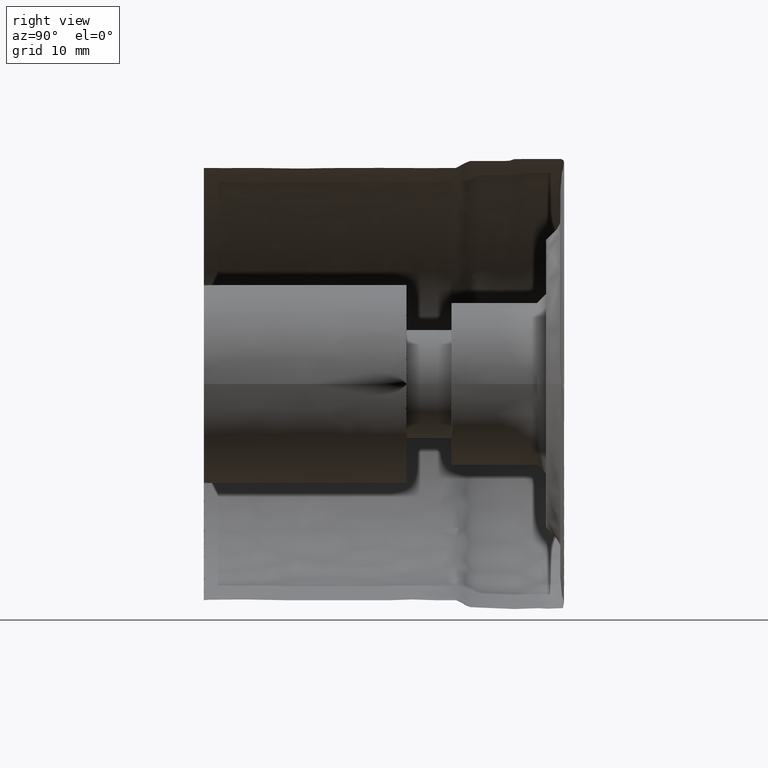
[diagram: clean part render]
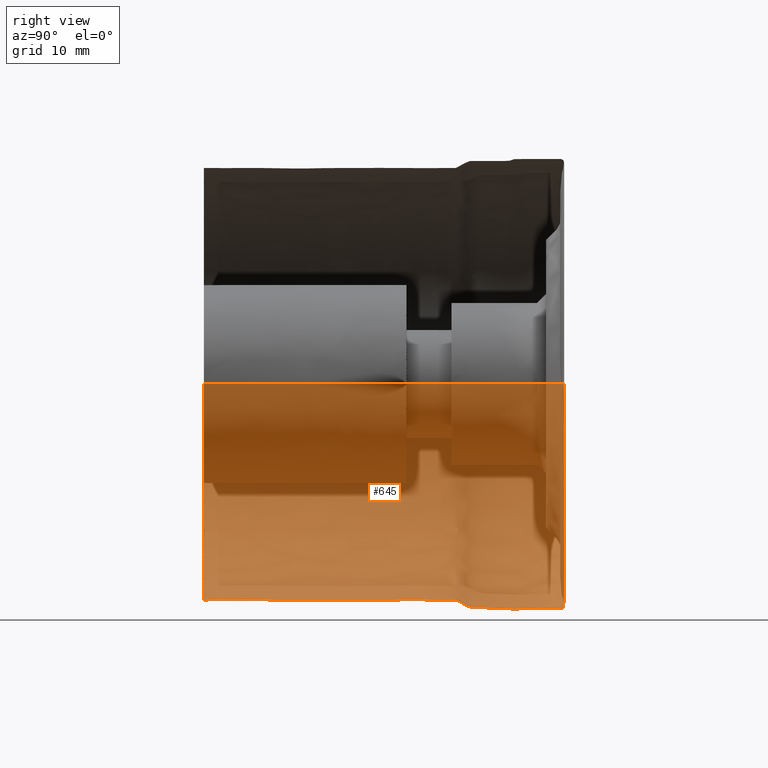
[diagram: same view with one face highlighted and labeled with its STEP entity id]
A machine part, right view. The second image highlights one B-rep face of the part: STEP entity #645.
In plain terms, the highlighted face is a freeform B-spline surface patch.
Its self-contained STEP definition (entity closure, byte-faithful):
#2 = CARTESIAN_POINT ( 'NONE',  ( 24.13964317964475000, 39.99261137805715500, 2.956156041679799800E-015 ) ) ;
#4 = CARTESIAN_POINT ( 'NONE',  ( 21.42947871147335100, 39.57339999999999900, 2.624267578917160200E-015 ) ) ;
#8 = CARTESIAN_POINT ( 'NONE',  ( 4.311545017381719900E-015, 39.74729020106985200, -23.47173306711470200 ) ) ;
#19 = CARTESIAN_POINT ( 'NONE',  ( -24.77530000000000100, 29.58117358629594700, -4.256733303206069800E-015 ) ) ;
#22 = CARTESIAN_POINT ( 'NONE',  ( 24.77529999999995200, 29.58117358629593200, -24.77529999999995200 ) ) ;
#24 = CARTESIAN_POINT ( 'NONE',  ( -22.60941189616135100, 39.73827917245049700, -5.537525892845280700E-015 ) ) ;
#25 = CARTESIAN_POINT ( 'NONE',  ( 4.399994483277904700E-015, 39.92430582025439600, -23.95324543566814800 ) ) ;
#28 = CARTESIAN_POINT ( 'NONE',  ( 24.99682652491677400, 39.76895328073157300, -24.99682652491677400 ) ) ;
#29 = CARTESIAN_POINT ( 'NONE',  ( 11.00000000000000000, 0.0000000000000000000, 1.347066989204614000E-015 ) ) ;
#32 = CARTESIAN_POINT ( 'NONE',  ( 24.77529999999995200, 29.09084159066969000, -24.77529999999995200 ) ) ;
#35 = CARTESIAN_POINT ( 'NONE',  ( 23.99999999999999600, 28.00000000000000700, -23.99999999999999600 ) ) ;
#39 = CARTESIAN_POINT ( 'NONE',  ( 24.77530000000000100, 29.09084159066968700, 1.252757507286833100E-015 ) ) ;
#41 = CARTESIAN_POINT ( 'NONE',  ( 24.99639354798992100, 39.60653528401000000, -24.99639354798992100 ) ) ;
#42 = CARTESIAN_POINT ( 'NONE',  ( 17.50000000000000000, 0.0000000000000000000, 2.143061119189159800E-015 ) ) ;
#43 = EDGE_LOOP ( 'NONE', ( #561, #507, #269, #486 ) ) ;
#56 = CARTESIAN_POINT ( 'NONE',  ( 24.60404800753579800, 39.99659884574440100, 3.013027351977914900E-015 ) ) ;
#57 = CARTESIAN_POINT ( 'NONE',  ( 24.99639354798994600, 39.60653528401005000, 3.061074236151315200E-015 ) ) ;
#65 = CARTESIAN_POINT ( 'NONE',  ( 4.434234062519700200E-015, 39.99261137805715500, -24.13964317964475000 ) ) ;
#66 = CARTESIAN_POINT ( 'NONE',  ( -21.55088943592901200, 39.72753399771878700, -5.278271226752446100E-015 ) ) ;
#70 = CARTESIAN_POINT ( 'NONE',  ( -23.47173306711470200, 39.74729020106985200, -5.748726689842289800E-015 ) ) ;
#82 = CARTESIAN_POINT ( 'NONE',  ( -24.60404800753579800, 39.99659884574440100, -6.026054703955829900E-015 ) ) ;
#85 = CARTESIAN_POINT ( 'NONE',  ( -24.76646075411625200, 39.99797464198817900, -6.065833040236651600E-015 ) ) ;
#89 = CARTESIAN_POINT ( 'NONE',  ( -24.00000000000000000, 0.0000000000000000000, -5.878110498347410100E-015 ) ) ;
#90 = CARTESIAN_POINT ( 'NONE',  ( 24.96573568026043700, 34.26659041497172400, -24.96573568026035500 ) ) ;
#94 = CARTESIAN_POINT ( 'NONE',  ( -24.38765000000000100, 28.79058679314794800, -4.210197453101073900E-015 ) ) ;
#98 = CARTESIAN_POINT ( 'NONE',  ( -24.00000000000000000, 14.00000000000000000, -5.020886050671749900E-015 ) ) ;
#101 = CARTESIAN_POINT ( 'NONE',  ( 4.590381217429320100E-015, 37.04831764200499600, -24.98969677399495000 ) ) ;
#102 = CARTESIAN_POINT ( 'NONE',  ( 21.42947871147335100, 39.57339999999999900, 2.624267578917160200E-015 ) ) ;
#104 = CARTESIAN_POINT ( 'NONE',  ( -24.99639354798992100, 39.60653528401000000, -24.99639354798992100 ) ) ;
#107 =( BOUNDED_SURFACE ( )  B_SPLINE_SURFACE ( 2, 2, ( 
 ( #459, #346, #400, #226, #287 ),
 ( #691, #634, #215, #517, #114 ),
 ( #461, #758, #344, #229, #636 ),
 ( #220, #623, #160, #560, #98 ),
 ( #500, #35, #444, #745, #384 ),
 ( #679, #332, #498, #275, #217 ),
 ( #620, #157, #557, #441, #94 ),
 ( #381, #32, #328, #741, #272 ),
 ( #676, #22, #317, #665, #371 ),
 ( #731, #737, #438, #490, #433 ),
 ( #377, #151, #264, #211, #551 ),
 ( #436, #90, #449, #336, #162 ),
 ( #224, #630, #283, #686, #341 ),
 ( #756, #503, #101, #393, #752 ),
 ( #452, #41, #508, #104, #567 ),
 ( #167, #28, #281, #627, #684 ),
 ( #493, #279, #176, #681, #222 ),
 ( #321, #607, #549, #405, #464 ),
 ( #56, #762, #638, #734, #116 ),
 ( #521, #178, #234, #579, #334 ),
 ( #2, #412, #65, #472, #697 ),
 ( #592, #760, #403, #348, #693 ),
 ( #290, #232, #25, #212, #302 ),
 ( #649, #245, #709, #190, #126 ),
 ( #356, #358, #8, #416, #70 ),
 ( #475, #130, #739, #695, #671 ),
 ( #725, #688, #454, #666, #662 ),
 ( #326, #754, #720, #707, #66 ),
 ( #4, #187, #242, #413, #588 ) ),
 .UNSPECIFIED., .F., .F., .T. ) 
 B_SPLINE_SURFACE_WITH_KNOTS ( ( 3, 2, 2, 2, 2, 2, 2, 2, 2, 2, 2, 2, 2, 2, 3 ),
 ( 3, 2, 3 ),
 ( 0.0000000000000000000, 13.00000000000000000, 41.00000000000000000, 41.88051121514720200, 42.76102243029440300, 47.32816481955410400, 47.72810932741119700, 52.84456214187059700, 53.14432677780929700, 53.44409141374799800, 53.90851335681800500, 54.10703332021369500, 54.62005808878330300, 56.34479459099009800, 56.69872792115900500 ),
 ( 3.141592653589795300, 4.712388980384689700, 6.283185307179590700 ),
 .UNSPECIFIED. ) 
 GEOMETRIC_REPRESENTATION_ITEM ( )  RATIONAL_B_SPLINE_SURFACE ( (
 ( 1.000000000000000000, 0.7071067811865480200, 1.000000000000000000, 0.7071067811865480200, 1.000000000000000000),
 ( 1.000000000000000000, 0.7071067811865480200, 1.000000000000000000, 0.7071067811865480200, 1.000000000000000000),
 ( 1.000000000000000000, 0.7071067811865480200, 1.000000000000000000, 0.7071067811865480200, 1.000000000000000000),
 ( 1.000000000000000000, 0.7071067811865480200, 1.000000000000000000, 0.7071067811865480200, 1.000000000000000000),
 ( 1.000000000000000000, 0.7071067811865480200, 1.000000000000000000, 0.7071067811865480200, 1.000000000000000000),
 ( 0.8978724853786330700, 0.6348917230520509900, 0.8978724853786330700, 0.6348917230520509900, 0.8978724853786330700),
 ( 1.000000000000000000, 0.7071067811865480200, 1.000000000000000000, 0.7071067811865480200, 1.000000000000000000),
 ( 0.8978724853786330700, 0.6348917230520509900, 0.8978724853786330700, 0.6348917230520509900, 0.8978724853786330700),
 ( 1.000000000000000000, 0.7071067811865480200, 1.000000000000000000, 0.7071067811865480200, 1.000000000000000000),
 ( 1.000000000000000000, 0.7071067811865480200, 1.000000000000000000, 0.7071067811865480200, 1.000000000000000000),
 ( 1.000000000000000000, 0.7071067811865480200, 1.000000000000000000, 0.7071067811865480200, 1.000000000000000000),
 ( 0.8920349467165550300, 0.6307639598786570800, 0.8920349467165550300, 0.6307639598786570800, 0.8920349467165550300),
 ( 1.000000000000000000, 0.7071067811865480200, 1.000000000000000000, 0.7071067811865480200, 1.000000000000000000),
 ( 1.000000000000000000, 0.7071067811865480200, 1.000000000000000000, 0.7071067811865480200, 1.000000000000000000),
 ( 1.000000000000000000, 0.7071067811865480200, 1.000000000000000000, 0.7071067811865480200, 1.000000000000000000),
 ( 0.9228151349896920300, 0.6525288397327910800, 0.9228151349896920300, 0.6525288397327910800, 0.9228151349896920300),
 ( 1.000000000000000000, 0.7071067811865480200, 1.000000000000000000, 0.7071067811865480200, 1.000000000000000000),
 ( 0.9228151349896920300, 0.6525288397327910800, 0.9228151349896920300, 0.6525288397327910800, 0.9228151349896920300),
 ( 1.000000000000000000, 0.7071067811865480200, 1.000000000000000000, 0.7071067811865480200, 1.000000000000000000),
 ( 1.000000000000000000, 0.7071067811865480200, 1.000000000000000000, 0.7071067811865480200, 1.000000000000000000),
 ( 1.000000000000000000, 0.7071067811865480200, 1.000000000000000000, 0.7071067811865480200, 1.000000000000000000),
 ( 0.9418178813543789400, 0.6659658105484279600, 0.9418178813543789400, 0.6659658105484279600, 0.9418178813543789400),
 ( 1.000000000000000000, 0.7071067811865480200, 1.000000000000000000, 0.7071067811865480200, 1.000000000000000000),
 ( 0.9421499427126159800, 0.6662006133866079600, 0.9421499427126159800, 0.6662006133866079600, 0.9421499427126159800),
 ( 1.000000000000000000, 0.7071067811865480200, 1.000000000000000000, 0.7071067811865480200, 1.000000000000000000),
 ( 1.000000000000000000, 0.7071067811865480200, 1.000000000000000000, 0.7071067811865480200, 1.000000000000000000),
 ( 1.000000000000000000, 0.7071067811865480200, 1.000000000000000000, 0.7071067811865480200, 1.000000000000000000),
 ( 0.9019307842641251000, 0.6377613737140640500, 0.9019307842641251000, 0.6377613737140640500, 0.9019307842641251000),
 ( 1.000000000000000000, 0.7071067811865480200, 1.000000000000000000, 0.7071067811865480200, 1.000000000000000000) ) ) 
 REPRESENTATION_ITEM ( '' )  SURFACE ( )  );
#114 = CARTESIAN_POINT ( 'NONE',  ( -17.50000000000000000, 0.0000000000000000000, -4.286122238378319600E-015 ) ) ;
#115 = CARTESIAN_POINT ( 'NONE',  ( 24.60404800753579800, 39.99659884574440100, 3.013027351977914900E-015 ) ) ;
#116 = CARTESIAN_POINT ( 'NONE',  ( -24.60404800753579800, 39.99659884574440100, -6.026054703955829900E-015 ) ) ;
#126 = CARTESIAN_POINT ( 'NONE',  ( -23.74398100623139000, 39.75013512017143600, -5.815406001053756000E-015 ) ) ;
#130 = CARTESIAN_POINT ( 'NONE',  ( 22.60941189616135100, 39.73827917245047600, -22.60941189616128000 ) ) ;
#142 = CARTESIAN_POINT ( 'NONE',  ( -23.95324543566814800, 39.92430582025439600, -5.866659311037210800E-015 ) ) ;
#146 = CARTESIAN_POINT ( 'NONE',  ( -24.99639354798994600, 39.60653528401005000, -6.122148472302630300E-015 ) ) ;
#149 = CARTESIAN_POINT ( 'NONE',  ( -24.00000000000000000, 14.00000000000000000, -5.020886050671749900E-015 ) ) ;
#151 = CARTESIAN_POINT ( 'NONE',  ( 24.77529999999995200, 34.14831597555567600, -24.77529999999995200 ) ) ;
#157 = CARTESIAN_POINT ( 'NONE',  ( 24.38764999999997600, 28.79058679314797000, -24.38764999999997600 ) ) ;
#160 = CARTESIAN_POINT ( 'NONE',  ( 3.551358426084894400E-015, 14.00000000000000000, -24.00000000000000000 ) ) ;
#162 = CARTESIAN_POINT ( 'NONE',  ( -24.96573568026041600, 34.26659041497175900, -6.114639708379389000E-015 ) ) ;
#163 = CARTESIAN_POINT ( 'NONE',  ( 21.74709072520795100, 39.72926814383114900, 2.663162547924135000E-015 ) ) ;
#167 = CARTESIAN_POINT ( 'NONE',  ( 24.99682652491684100, 39.76895328073156600, 3.061127258780887100E-015 ) ) ;
#168 = CARTESIAN_POINT ( 'NONE',  ( 24.77530000000000100, 31.86474478092580400, 1.082910533703044000E-015 ) ) ;
#176 = CARTESIAN_POINT ( 'NONE',  ( 4.570532834174409800E-015, 39.88346396135984400, -24.88164363951650100 ) ) ;
#177 = CARTESIAN_POINT ( 'NONE',  ( 24.13964317964475000, 39.99261137805715500, 2.956156041679799800E-015 ) ) ;
#178 = CARTESIAN_POINT ( 'NONE',  ( 24.37184582017497500, 39.99457836357623100, -24.37184582017497500 ) ) ;
#180 = VERTEX_POINT ( 'NONE', #765 ) ;
#187 = CARTESIAN_POINT ( 'NONE',  ( 21.42947871147331500, 39.57339999999994300, -21.42947871147331500 ) ) ;
#190 = CARTESIAN_POINT ( 'NONE',  ( -23.74398100623136500, 39.75013512017142900, -23.74398100623144000 ) ) ;
#202 =( BOUNDED_CURVE ( )  B_SPLINE_CURVE ( 2, ( #661, #435, #488, #491, #609 ),
 .UNSPECIFIED., .F., .F. ) 
 B_SPLINE_CURVE_WITH_KNOTS ( ( 3, 2, 3 ),
 ( 3.141592653589795300, 4.712388980384689700, 6.283185307179590700 ),
 .UNSPECIFIED. ) 
 CURVE ( )  GEOMETRIC_REPRESENTATION_ITEM ( )  RATIONAL_B_SPLINE_CURVE ( ( 1.000000000000000000, 0.7071067811865480200, 1.000000000000000000, 0.7071067811865480200, 1.000000000000000000 ) ) 
 REPRESENTATION_ITEM ( '' )  );
#204 = CARTESIAN_POINT ( 'NONE',  ( -21.42947871147335100, 39.57339999999999900, -5.248535157834320400E-015 ) ) ;
#208 = CARTESIAN_POINT ( 'NONE',  ( 21.42947871147335100, 39.57339999999999900, 2.624267578917160200E-015 ) ) ;
#210 = CARTESIAN_POINT ( 'NONE',  ( -23.74398100623139400, 39.75013512017142100, -5.815406001053756700E-015 ) ) ;
#211 = CARTESIAN_POINT ( 'NONE',  ( -24.77529999999995200, 34.14831597555567600, -24.77529999999995200 ) ) ;
#212 = CARTESIAN_POINT ( 'NONE',  ( -23.95324543566811200, 39.92430582025439600, -23.95324543566811200 ) ) ;
#213 = CARTESIAN_POINT ( 'NONE',  ( 24.77530000000000100, 29.58117358629594700, 1.222734323420520100E-015 ) ) ;
#215 = CARTESIAN_POINT ( 'NONE',  ( 3.214591678783739900E-015, 0.0000000000000000000, -17.50000000000000000 ) ) ;
#217 = CARTESIAN_POINT ( 'NONE',  ( -24.00000000000000700, 28.49033199562621700, -4.133638419129769000E-015 ) ) ;
#220 = CARTESIAN_POINT ( 'NONE',  ( 24.00000000000000000, 14.00000000000000000, 2.081830801498040200E-015 ) ) ;
#222 = CARTESIAN_POINT ( 'NONE',  ( -24.88164363951650100, 39.88346396135984400, -6.094043778899209300E-015 ) ) ;
#223 = CARTESIAN_POINT ( 'NONE',  ( 21.55088943592901200, 39.72753399771879400, 2.639135613376223000E-015 ) ) ;
#224 = CARTESIAN_POINT ( 'NONE',  ( 24.98300000000000100, 34.49009999999965000, 3.059434053754444800E-015 ) ) ;
#226 = CARTESIAN_POINT ( 'NONE',  ( -10.99999999999998800, 0.0000000000000000000, -10.99999999999998800 ) ) ;
#229 = CARTESIAN_POINT ( 'NONE',  ( -23.99999999999999600, 0.0000000000000000000, -23.99999999999999600 ) ) ;
#232 = CARTESIAN_POINT ( 'NONE',  ( 23.95324543566811200, 39.92430582025439600, -23.95324543566811200 ) ) ;
#233 = CARTESIAN_POINT ( 'NONE',  ( 23.74398100623139400, 39.75013512017142100, 2.907703000526878800E-015 ) ) ;
#234 = CARTESIAN_POINT ( 'NONE',  ( 4.476887586864844000E-015, 39.99457836357624500, -24.37184582017500000 ) ) ;
#235 = CARTESIAN_POINT ( 'NONE',  ( 24.88164363951650100, 39.88346396135984400, 3.047021889449604700E-015 ) ) ;
#242 = CARTESIAN_POINT ( 'NONE',  ( 3.936401368375745200E-015, 39.57339999999999900, -21.42947871147335100 ) ) ;
#245 = CARTESIAN_POINT ( 'NONE',  ( 23.74398100623144000, 39.75013512017142900, -23.74398100623136500 ) ) ;
#258 = CARTESIAN_POINT ( 'NONE',  ( -21.42947871147335100, 39.57339999999999900, -5.248535157834320400E-015 ) ) ;
#260 = EDGE_CURVE ( 'NONE', #355, #673, #668, .T. ) ;
#262 = CARTESIAN_POINT ( 'NONE',  ( 21.42947871147331500, 39.57339999999994300, -21.42947871147331500 ) ) ;
#263 = CARTESIAN_POINT ( 'NONE',  ( -24.03425502881858800, 39.99172169142091300, -5.886500283535727900E-015 ) ) ;
#264 = CARTESIAN_POINT ( 'NONE',  ( 2.460086233878344700E-015, 34.14831597555569700, -24.77530000000000100 ) ) ;
#266 = CARTESIAN_POINT ( 'NONE',  ( -24.37184582017500000, 39.99457836357624500, -5.969183449153130100E-015 ) ) ;
#269 = ORIENTED_EDGE ( 'NONE', *, *, #423, .F. ) ;
#272 = CARTESIAN_POINT ( 'NONE',  ( -24.77529999999999800, 29.09084159066968700, -4.286756487072384200E-015 ) ) ;
#274 = CARTESIAN_POINT ( 'NONE',  ( 11.00000000000000000, 0.0000000000000000000, 1.347066989204614000E-015 ) ) ;
#275 = CARTESIAN_POINT ( 'NONE',  ( -23.99999999999996400, 28.49033199562621000, -23.99999999999996400 ) ) ;
#279 = CARTESIAN_POINT ( 'NONE',  ( 24.88164363951649000, 39.88346396135984400, -24.88164363951649000 ) ) ;
#281 = CARTESIAN_POINT ( 'NONE',  ( 4.591690888171330600E-015, 39.76895328073156600, -24.99682652491684100 ) ) ;
#283 = CARTESIAN_POINT ( 'NONE',  ( 4.589151080631670700E-015, 34.49009999999965000, -24.98300000000000100 ) ) ;
#284 = CARTESIAN_POINT ( 'NONE',  ( -11.00000000000000000, 0.0000000000000000000, -2.694133978409229600E-015 ) ) ;
#287 = CARTESIAN_POINT ( 'NONE',  ( -11.00000000000000000, 0.0000000000000000000, -2.694133978409229600E-015 ) ) ;
#290 = CARTESIAN_POINT ( 'NONE',  ( 23.95324543566814800, 39.92430582025439600, 2.933329655518605000E-015 ) ) ;
#302 = CARTESIAN_POINT ( 'NONE',  ( -23.95324543566814800, 39.92430582025439600, -5.866659311037210800E-015 ) ) ;
#313 = CARTESIAN_POINT ( 'NONE',  ( -24.00000000000000000, 28.00000000000000000, -4.163661602996085000E-015 ) ) ;
#315 = CARTESIAN_POINT ( 'NONE',  ( -24.77530000000000100, 31.86474478092580400, -4.116909513488600300E-015 ) ) ;
#316 = VERTEX_POINT ( 'NONE', #284 ) ;
#317 = CARTESIAN_POINT ( 'NONE',  ( 2.739733813313295200E-015, 29.58117358629594700, -24.77530000000000100 ) ) ;
#318 =( BOUNDED_CURVE ( )  B_SPLINE_CURVE ( 2, ( #208, #262, #726, #667, #204 ),
 .UNSPECIFIED., .F., .T. ) 
 B_SPLINE_CURVE_WITH_KNOTS ( ( 3, 2, 3 ),
 ( 3.141592653589795300, 4.712388980384689700, 6.283185307179590700 ),
 .UNSPECIFIED. ) 
 CURVE ( )  GEOMETRIC_REPRESENTATION_ITEM ( )  RATIONAL_B_SPLINE_CURVE ( ( 1.000000000000000000, 0.7071067811865480200, 1.000000000000000000, 0.7071067811865480200, 1.000000000000000000 ) ) 
 REPRESENTATION_ITEM ( '' )  );
#320 = CARTESIAN_POINT ( 'NONE',  ( -24.77530000000000100, 29.09084159066968700, -4.286756487072384200E-015 ) ) ;
#321 = CARTESIAN_POINT ( 'NONE',  ( 24.76646075411625200, 39.99797464198817900, 3.032916520118326200E-015 ) ) ;
#326 = CARTESIAN_POINT ( 'NONE',  ( 21.55088943592901200, 39.72753399771878700, 2.639135613376223000E-015 ) ) ;
#328 = CARTESIAN_POINT ( 'NONE',  ( 2.769756997179608900E-015, 29.09084159066968700, -24.77529999999999800 ) ) ;
#332 = CARTESIAN_POINT ( 'NONE',  ( 23.99999999999996400, 28.49033199562621000, -23.99999999999996400 ) ) ;
#334 = CARTESIAN_POINT ( 'NONE',  ( -24.37184582017500000, 39.99457836357624500, -5.969183449153130100E-015 ) ) ;
#336 = CARTESIAN_POINT ( 'NONE',  ( -24.96573568026035500, 34.26659041497172400, -24.96573568026043700 ) ) ;
#338 = CARTESIAN_POINT ( 'NONE',  ( 24.00000000000000000, 28.00000000000000000, 1.224606353822375900E-015 ) ) ;
#341 = CARTESIAN_POINT ( 'NONE',  ( -24.98300000000000100, 34.49009999999965000, -6.118868107508889600E-015 ) ) ;
#342 = CARTESIAN_POINT ( 'NONE',  ( 22.60941189616135100, 39.73827917245049700, 2.768762946422640000E-015 ) ) ;
#344 = CARTESIAN_POINT ( 'NONE',  ( 4.408582873760559700E-015, 0.0000000000000000000, -24.00000000000000000 ) ) ;
#346 = CARTESIAN_POINT ( 'NONE',  ( 10.99999999999998800, 0.0000000000000000000, -10.99999999999998800 ) ) ;
#348 = CARTESIAN_POINT ( 'NONE',  ( -24.03425502881858800, 39.99172169142094900, -24.03425502881858800 ) ) ;
#355 = VERTEX_POINT ( 'NONE', #29 ) ;
#356 = CARTESIAN_POINT ( 'NONE',  ( 23.47173306711470200, 39.74729020106985200, 2.874363344921144900E-015 ) ) ;
#358 = CARTESIAN_POINT ( 'NONE',  ( 23.47173306711471600, 39.74729020106982300, -23.47173306711471600 ) ) ;
#370 = CARTESIAN_POINT ( 'NONE',  ( -24.00000000000000700, 28.49033199562621700, -4.133638419129769000E-015 ) ) ;
#371 = CARTESIAN_POINT ( 'NONE',  ( -24.77530000000000100, 29.58117358629594700, -4.256733303206069800E-015 ) ) ;
#373 = CARTESIAN_POINT ( 'NONE',  ( -24.77530000000000100, 34.14831597555569700, -3.977085723771125200E-015 ) ) ;
#374 = CARTESIAN_POINT ( 'NONE',  ( 21.42947871147335100, 39.57339999999999900, 2.624267578917160200E-015 ) ) ;
#377 = CARTESIAN_POINT ( 'NONE',  ( 24.77530000000000100, 34.14831597555569700, 9.430867439855699400E-016 ) ) ;
#381 = CARTESIAN_POINT ( 'NONE',  ( 24.77529999999999800, 29.09084159066968700, 1.252757507286832900E-015 ) ) ;
#384 = CARTESIAN_POINT ( 'NONE',  ( -24.00000000000000000, 28.00000000000000000, -4.163661602996085000E-015 ) ) ;
#393 = CARTESIAN_POINT ( 'NONE',  ( -24.98969677399497500, 37.04831764200498900, -24.98969677399497500 ) ) ;
#395 = CARTESIAN_POINT ( 'NONE',  ( 24.98300000000000100, 34.49009999999965000, 3.059434053754444800E-015 ) ) ;
#400 = CARTESIAN_POINT ( 'NONE',  ( 2.020600483806920100E-015, 0.0000000000000000000, -11.00000000000000000 ) ) ;
#403 = CARTESIAN_POINT ( 'NONE',  ( 4.414875212651799100E-015, 39.99172169142091300, -24.03425502881858800 ) ) ;
#405 = CARTESIAN_POINT ( 'NONE',  ( -24.76646075411620300, 39.99797464198818600, -24.76646075411620300 ) ) ;
#406 = CARTESIAN_POINT ( 'NONE',  ( 24.76646075411625200, 39.99797464198817900, 3.032916520118326200E-015 ) ) ;
#408 = EDGE_CURVE ( 'NONE', #673, #180, #318, .T. ) ;
#410 = FACE_OUTER_BOUND ( 'NONE', #43, .T. ) ;
#412 = CARTESIAN_POINT ( 'NONE',  ( 24.13964317964474300, 39.99261137805714100, -24.13964317964474300 ) ) ;
#413 = CARTESIAN_POINT ( 'NONE',  ( -21.42947871147331500, 39.57339999999994300, -21.42947871147331500 ) ) ;
#416 = CARTESIAN_POINT ( 'NONE',  ( -23.47173306711471600, 39.74729020106982300, -23.47173306711471600 ) ) ;
#423 = EDGE_CURVE ( 'NONE', #316, #180, #523, .T. ) ;
#431 = CARTESIAN_POINT ( 'NONE',  ( -24.98969677399495000, 37.04831764200499600, -6.120508289905760400E-015 ) ) ;
#433 = CARTESIAN_POINT ( 'NONE',  ( -24.77530000000000100, 31.86474478092580400, -4.116909513488600300E-015 ) ) ;
#435 = CARTESIAN_POINT ( 'NONE',  ( 10.99999999999998800, 0.0000000000000000000, -10.99999999999998800 ) ) ;
#436 = CARTESIAN_POINT ( 'NONE',  ( 24.96573568026041600, 34.26659041497175900, 3.057319854189694500E-015 ) ) ;
#438 = CARTESIAN_POINT ( 'NONE',  ( 2.599910023595819800E-015, 31.86474478092580400, -24.77530000000000100 ) ) ;
#441 = CARTESIAN_POINT ( 'NONE',  ( -24.38764999999997600, 28.79058679314797000, -24.38764999999997600 ) ) ;
#444 = CARTESIAN_POINT ( 'NONE',  ( 2.694133978409229600E-015, 28.00000000000000000, -24.00000000000000000 ) ) ;
#449 = CARTESIAN_POINT ( 'NONE',  ( 4.585979781284535000E-015, 34.26659041497175900, -24.96573568026041600 ) ) ;
#452 = CARTESIAN_POINT ( 'NONE',  ( 24.99639354798994600, 39.60653528401005000, 3.061074236151315200E-015 ) ) ;
#453 = CARTESIAN_POINT ( 'NONE',  ( 24.98969677399495000, 37.04831764200499600, 3.060254144952880200E-015 ) ) ;
#454 = CARTESIAN_POINT ( 'NONE',  ( 3.994743821886205100E-015, 39.72926814383114900, -21.74709072520795100 ) ) ;
#459 = CARTESIAN_POINT ( 'NONE',  ( 11.00000000000000000, 0.0000000000000000000, 1.347066989204614000E-015 ) ) ;
#461 = CARTESIAN_POINT ( 'NONE',  ( 24.00000000000000000, 0.0000000000000000000, 2.939055249173705000E-015 ) ) ;
#464 = CARTESIAN_POINT ( 'NONE',  ( -24.76646075411625200, 39.99797464198817900, -6.065833040236651600E-015 ) ) ;
#472 = CARTESIAN_POINT ( 'NONE',  ( -24.13964317964474300, 39.99261137805714100, -24.13964317964474300 ) ) ;
#474 = CARTESIAN_POINT ( 'NONE',  ( -11.00000000000000000, 0.0000000000000000000, -2.694133978409229600E-015 ) ) ;
#475 = CARTESIAN_POINT ( 'NONE',  ( 22.60941189616135100, 39.73827917245049700, 2.768762946422640000E-015 ) ) ;
#485 = CARTESIAN_POINT ( 'NONE',  ( -24.38765000000000100, 28.79058679314794800, -4.210197453101073900E-015 ) ) ;
#486 = ORIENTED_EDGE ( 'NONE', *, *, #730, .F. ) ;
#488 = CARTESIAN_POINT ( 'NONE',  ( 2.020600483806920100E-015, 0.0000000000000000000, -11.00000000000000000 ) ) ;
#489 = CARTESIAN_POINT ( 'NONE',  ( -24.96573568026041600, 34.26659041497175900, -6.114639708379389000E-015 ) ) ;
#490 = CARTESIAN_POINT ( 'NONE',  ( -24.77529999999995200, 31.86474478092580000, -24.77529999999995200 ) ) ;
#491 = CARTESIAN_POINT ( 'NONE',  ( -10.99999999999998800, 0.0000000000000000000, -10.99999999999998800 ) ) ;
#492 = CARTESIAN_POINT ( 'NONE',  ( -24.13964317964475000, 39.99261137805715500, -5.912312083359599700E-015 ) ) ;
#493 = CARTESIAN_POINT ( 'NONE',  ( 24.88164363951650100, 39.88346396135984400, 3.047021889449604700E-015 ) ) ;
#498 = CARTESIAN_POINT ( 'NONE',  ( 2.664110794542912400E-015, 28.49033199562621700, -24.00000000000000700 ) ) ;
#500 = CARTESIAN_POINT ( 'NONE',  ( 24.00000000000000000, 28.00000000000000000, 1.224606353822375900E-015 ) ) ;
#503 = CARTESIAN_POINT ( 'NONE',  ( 24.98969677399497500, 37.04831764200498900, -24.98969677399497500 ) ) ;
#505 = CARTESIAN_POINT ( 'NONE',  ( 24.00000000000000000, 0.0000000000000000000, 2.939055249173705000E-015 ) ) ;
#507 = ORIENTED_EDGE ( 'NONE', *, *, #408, .T. ) ;
#508 = CARTESIAN_POINT ( 'NONE',  ( 4.591611354226979600E-015, 39.60653528401005000, -24.99639354798994600 ) ) ;
#510 = CARTESIAN_POINT ( 'NONE',  ( 24.96573568026041600, 34.26659041497175900, 3.057319854189694500E-015 ) ) ;
#513 = CARTESIAN_POINT ( 'NONE',  ( 24.38765000000000100, 28.79058679314794800, 1.223670338621448000E-015 ) ) ;
#517 = CARTESIAN_POINT ( 'NONE',  ( -17.49999999999998200, 0.0000000000000000000, -17.50000000000001100 ) ) ;
#518 = CARTESIAN_POINT ( 'NONE',  ( 24.37184582017500000, 39.99457836357624500, 2.984591724576565000E-015 ) ) ;
#521 = CARTESIAN_POINT ( 'NONE',  ( 24.37184582017500000, 39.99457836357624500, 2.984591724576565000E-015 ) ) ;
#522 = CARTESIAN_POINT ( 'NONE',  ( 24.77530000000000100, 34.14831597555569700, 9.430867439855699400E-016 ) ) ;
#523 =( BOUNDED_CURVE ( )  B_SPLINE_CURVE ( 2, ( #474, #611, #89, #149, #313, #370, #485, #320, #19, #315, #373, #489, #733, #431, #146, #664, #606, #85, #82, #266, #492, #263, #142, #210, #604, #24, #724, #736, #258 ),
 .UNSPECIFIED., .F., .T. ) 
 B_SPLINE_CURVE_WITH_KNOTS ( ( 3, 2, 2, 2, 2, 2, 2, 2, 2, 2, 2, 2, 2, 2, 3 ),
 ( 0.0000000000000000000, 13.00000000000000000, 41.00000000000000000, 41.88051121514719500, 42.76102243029441000, 47.32816481955410400, 47.72810932741119700, 52.84456214187059000, 53.14432677780929700, 53.44409141374799800, 53.90851335681800500, 54.10703332021369500, 54.62005808878330300, 56.34479459099009800, 56.69872792115901200 ),
 .UNSPECIFIED. ) 
 CURVE ( )  GEOMETRIC_REPRESENTATION_ITEM ( )  RATIONAL_B_SPLINE_CURVE ( ( 1.000000000000000000, 1.000000000000000000, 1.000000000000000000, 1.000000000000000000, 1.000000000000000000, 0.8978724853786330700, 1.000000000000000000, 0.8978724853786330700, 1.000000000000000000, 1.000000000000000000, 1.000000000000000000, 0.8920349467165550300, 1.000000000000000000, 1.000000000000000000, 1.000000000000000000, 0.9228151349896920300, 1.000000000000000000, 0.9228151349896920300, 1.000000000000000000, 1.000000000000000000, 1.000000000000000000, 0.9418178813543789400, 1.000000000000000000, 0.9421499427126159800, 1.000000000000000000, 1.000000000000000000, 1.000000000000000000, 0.9019307842641251000, 1.000000000000000000 ) ) 
 REPRESENTATION_ITEM ( '' )  );
#549 = CARTESIAN_POINT ( 'NONE',  ( 4.549374780177493600E-015, 39.99797464198817900, -24.76646075411625200 ) ) ;
#551 = CARTESIAN_POINT ( 'NONE',  ( -24.77530000000000100, 34.14831597555569700, -3.977085723771125200E-015 ) ) ;
#557 = CARTESIAN_POINT ( 'NONE',  ( 2.716933895861260000E-015, 28.79058679314794800, -24.38765000000000100 ) ) ;
#560 = CARTESIAN_POINT ( 'NONE',  ( -23.99999999999999600, 13.99999999999999800, -23.99999999999999600 ) ) ;
#561 = ORIENTED_EDGE ( 'NONE', *, *, #260, .T. ) ;
#567 = CARTESIAN_POINT ( 'NONE',  ( -24.99639354798994600, 39.60653528401005000, -6.122148472302630300E-015 ) ) ;
#577 = CARTESIAN_POINT ( 'NONE',  ( 24.03425502881858800, 39.99172169142091300, 2.943250141767863900E-015 ) ) ;
#579 = CARTESIAN_POINT ( 'NONE',  ( -24.37184582017497500, 39.99457836357623100, -24.37184582017497500 ) ) ;
#580 = CARTESIAN_POINT ( 'NONE',  ( 23.47173306711470200, 39.74729020106985200, 2.874363344921144900E-015 ) ) ;
#588 = CARTESIAN_POINT ( 'NONE',  ( -21.42947871147335100, 39.57339999999999900, -5.248535157834320400E-015 ) ) ;
#592 = CARTESIAN_POINT ( 'NONE',  ( 24.03425502881858800, 39.99172169142091300, 2.943250141767863500E-015 ) ) ;
#604 = CARTESIAN_POINT ( 'NONE',  ( -23.47173306711470200, 39.74729020106985200, -5.748726689842289800E-015 ) ) ;
#606 = CARTESIAN_POINT ( 'NONE',  ( -24.88164363951650100, 39.88346396135984400, -6.094043778899209300E-015 ) ) ;
#607 = CARTESIAN_POINT ( 'NONE',  ( 24.76646075411620300, 39.99797464198818600, -24.76646075411620300 ) ) ;
#609 = CARTESIAN_POINT ( 'NONE',  ( -11.00000000000000000, 0.0000000000000000000, -2.694133978409229600E-015 ) ) ;
#611 = CARTESIAN_POINT ( 'NONE',  ( -17.50000000000000000, 0.0000000000000000000, -4.286122238378319600E-015 ) ) ;
#620 = CARTESIAN_POINT ( 'NONE',  ( 24.38765000000000100, 28.79058679314794800, 1.223670338621448000E-015 ) ) ;
#623 = CARTESIAN_POINT ( 'NONE',  ( 23.99999999999999600, 13.99999999999999800, -23.99999999999999600 ) ) ;
#627 = CARTESIAN_POINT ( 'NONE',  ( -24.99682652491677400, 39.76895328073157300, -24.99682652491677400 ) ) ;
#630 = CARTESIAN_POINT ( 'NONE',  ( 24.98299999999996100, 34.49009999999963600, -24.98299999999996100 ) ) ;
#634 = CARTESIAN_POINT ( 'NONE',  ( 17.50000000000001100, 0.0000000000000000000, -17.49999999999998200 ) ) ;
#636 = CARTESIAN_POINT ( 'NONE',  ( -24.00000000000000000, 0.0000000000000000000, -5.878110498347410100E-015 ) ) ;
#638 = CARTESIAN_POINT ( 'NONE',  ( 4.519541027966870300E-015, 39.99659884574440100, -24.60404800753579800 ) ) ;
#639 = CARTESIAN_POINT ( 'NONE',  ( 23.95324543566814800, 39.92430582025439600, 2.933329655518605000E-015 ) ) ;
#645 = ADVANCED_FACE ( 'NONE', ( #410 ), #107, .T. ) ;
#649 = CARTESIAN_POINT ( 'NONE',  ( 23.74398100623139000, 39.75013512017143600, 2.907703000526878400E-015 ) ) ;
#661 = CARTESIAN_POINT ( 'NONE',  ( 11.00000000000000000, 0.0000000000000000000, 1.347066989204614000E-015 ) ) ;
#662 = CARTESIAN_POINT ( 'NONE',  ( -21.74709072520795100, 39.72926814383114900, -5.326325095848269200E-015 ) ) ;
#664 = CARTESIAN_POINT ( 'NONE',  ( -24.99682652491684100, 39.76895328073155900, -6.122254517561773300E-015 ) ) ;
#665 = CARTESIAN_POINT ( 'NONE',  ( -24.77529999999995200, 29.58117358629593200, -24.77529999999995200 ) ) ;
#666 = CARTESIAN_POINT ( 'NONE',  ( -21.74709072520791500, 39.72926814383113500, -21.74709072520798300 ) ) ;
#667 = CARTESIAN_POINT ( 'NONE',  ( -21.42947871147331500, 39.57339999999994300, -21.42947871147331500 ) ) ;
#668 =( BOUNDED_CURVE ( )  B_SPLINE_CURVE ( 2, ( #274, #42, #505, #692, #338, #685, #513, #39, #213, #168, #522, #510, #395, #453, #57, #738, #235, #406, #115, #518, #177, #577, #639, #233, #580, #342, #163, #223, #102 ),
 .UNSPECIFIED., .F., .T. ) 
 B_SPLINE_CURVE_WITH_KNOTS ( ( 3, 2, 2, 2, 2, 2, 2, 2, 2, 2, 2, 2, 2, 2, 3 ),
 ( 0.0000000000000000000, 13.00000000000000000, 41.00000000000000000, 41.88051121514719500, 42.76102243029441000, 47.32816481955410400, 47.72810932741119700, 52.84456214187059000, 53.14432677780929700, 53.44409141374799800, 53.90851335681800500, 54.10703332021369500, 54.62005808878330300, 56.34479459099009800, 56.69872792115901200 ),
 .UNSPECIFIED. ) 
 CURVE ( )  GEOMETRIC_REPRESENTATION_ITEM ( )  RATIONAL_B_SPLINE_CURVE ( ( 1.000000000000000000, 1.000000000000000000, 1.000000000000000000, 1.000000000000000000, 1.000000000000000000, 0.8978724853786330700, 1.000000000000000000, 0.8978724853786330700, 1.000000000000000000, 1.000000000000000000, 1.000000000000000000, 0.8920349467165550300, 1.000000000000000000, 1.000000000000000000, 1.000000000000000000, 0.9228151349896920300, 1.000000000000000000, 0.9228151349896920300, 1.000000000000000000, 1.000000000000000000, 1.000000000000000000, 0.9418178813543789400, 1.000000000000000000, 0.9421499427126159800, 1.000000000000000000, 1.000000000000000000, 1.000000000000000000, 0.9019307842641251000, 1.000000000000000000 ) ) 
 REPRESENTATION_ITEM ( '' )  );
#671 = CARTESIAN_POINT ( 'NONE',  ( -22.60941189616135100, 39.73827917245049700, -5.537525892845280700E-015 ) ) ;
#673 = VERTEX_POINT ( 'NONE', #374 ) ;
#676 = CARTESIAN_POINT ( 'NONE',  ( 24.77530000000000100, 29.58117358629594700, 1.222734323420520100E-015 ) ) ;
#679 = CARTESIAN_POINT ( 'NONE',  ( 24.00000000000000700, 28.49033199562621700, 1.194583169956062600E-015 ) ) ;
#681 = CARTESIAN_POINT ( 'NONE',  ( -24.88164363951649000, 39.88346396135984400, -24.88164363951649000 ) ) ;
#684 = CARTESIAN_POINT ( 'NONE',  ( -24.99682652491684100, 39.76895328073156600, -6.122254517561774100E-015 ) ) ;
#685 = CARTESIAN_POINT ( 'NONE',  ( 24.00000000000000700, 28.49033199562621700, 1.194583169956062600E-015 ) ) ;
#686 = CARTESIAN_POINT ( 'NONE',  ( -24.98299999999996100, 34.49009999999963600, -24.98299999999996100 ) ) ;
#688 = CARTESIAN_POINT ( 'NONE',  ( 21.74709072520798300, 39.72926814383113500, -21.74709072520791500 ) ) ;
#691 = CARTESIAN_POINT ( 'NONE',  ( 17.50000000000000000, 0.0000000000000000000, 2.143061119189159800E-015 ) ) ;
#692 = CARTESIAN_POINT ( 'NONE',  ( 24.00000000000000000, 14.00000000000000000, 2.081830801498040200E-015 ) ) ;
#693 = CARTESIAN_POINT ( 'NONE',  ( -24.03425502881858800, 39.99172169142091300, -5.886500283535727100E-015 ) ) ;
#695 = CARTESIAN_POINT ( 'NONE',  ( -22.60941189616128000, 39.73827917245047600, -22.60941189616135100 ) ) ;
#697 = CARTESIAN_POINT ( 'NONE',  ( -24.13964317964475000, 39.99261137805715500, -5.912312083359599700E-015 ) ) ;
#707 = CARTESIAN_POINT ( 'NONE',  ( -21.55088943592901200, 39.72753399771876600, -21.55088943592901200 ) ) ;
#709 = CARTESIAN_POINT ( 'NONE',  ( 4.361554500790317200E-015, 39.75013512017143600, -23.74398100623139000 ) ) ;
#720 = CARTESIAN_POINT ( 'NONE',  ( 3.958703420064335100E-015, 39.72753399771878700, -21.55088943592901200 ) ) ;
#724 = CARTESIAN_POINT ( 'NONE',  ( -21.74709072520795100, 39.72926814383114900, -5.326325095848269200E-015 ) ) ;
#725 = CARTESIAN_POINT ( 'NONE',  ( 21.74709072520795100, 39.72926814383114900, 2.663162547924135000E-015 ) ) ;
#726 = CARTESIAN_POINT ( 'NONE',  ( 3.936401368375745200E-015, 39.57339999999999900, -21.42947871147335100 ) ) ;
#730 = EDGE_CURVE ( 'NONE', #355, #316, #202, .T. ) ;
#731 = CARTESIAN_POINT ( 'NONE',  ( 24.77530000000000100, 31.86474478092580400, 1.082910533703044000E-015 ) ) ;
#733 = CARTESIAN_POINT ( 'NONE',  ( -24.98300000000000100, 34.49009999999965000, -6.118868107508889600E-015 ) ) ;
#734 = CARTESIAN_POINT ( 'NONE',  ( -24.60404800753581600, 39.99659884574435900, -24.60404800753581600 ) ) ;
#736 = CARTESIAN_POINT ( 'NONE',  ( -21.55088943592901200, 39.72753399771879400, -5.278271226752446100E-015 ) ) ;
#737 = CARTESIAN_POINT ( 'NONE',  ( 24.77529999999995200, 31.86474478092580000, -24.77529999999995200 ) ) ;
#738 = CARTESIAN_POINT ( 'NONE',  ( 24.99682652491684100, 39.76895328073155900, 3.061127258780886700E-015 ) ) ;
#739 = CARTESIAN_POINT ( 'NONE',  ( 4.153144419633960100E-015, 39.73827917245049700, -22.60941189616135100 ) ) ;
#741 = CARTESIAN_POINT ( 'NONE',  ( -24.77529999999995200, 29.09084159066969000, -24.77529999999995200 ) ) ;
#745 = CARTESIAN_POINT ( 'NONE',  ( -23.99999999999999600, 28.00000000000000700, -23.99999999999999600 ) ) ;
#752 = CARTESIAN_POINT ( 'NONE',  ( -24.98969677399495000, 37.04831764200499600, -6.120508289905760400E-015 ) ) ;
#754 = CARTESIAN_POINT ( 'NONE',  ( 21.55088943592901200, 39.72753399771876600, -21.55088943592901200 ) ) ;
#756 = CARTESIAN_POINT ( 'NONE',  ( 24.98969677399495000, 37.04831764200499600, 3.060254144952880200E-015 ) ) ;
#758 = CARTESIAN_POINT ( 'NONE',  ( 23.99999999999999600, 0.0000000000000000000, -23.99999999999999600 ) ) ;
#760 = CARTESIAN_POINT ( 'NONE',  ( 24.03425502881858800, 39.99172169142094900, -24.03425502881858800 ) ) ;
#762 = CARTESIAN_POINT ( 'NONE',  ( 24.60404800753581600, 39.99659884574435900, -24.60404800753581600 ) ) ;
#765 = CARTESIAN_POINT ( 'NONE',  ( -21.42947871147335100, 39.57339999999999900, -5.248535157834320400E-015 ) ) ;